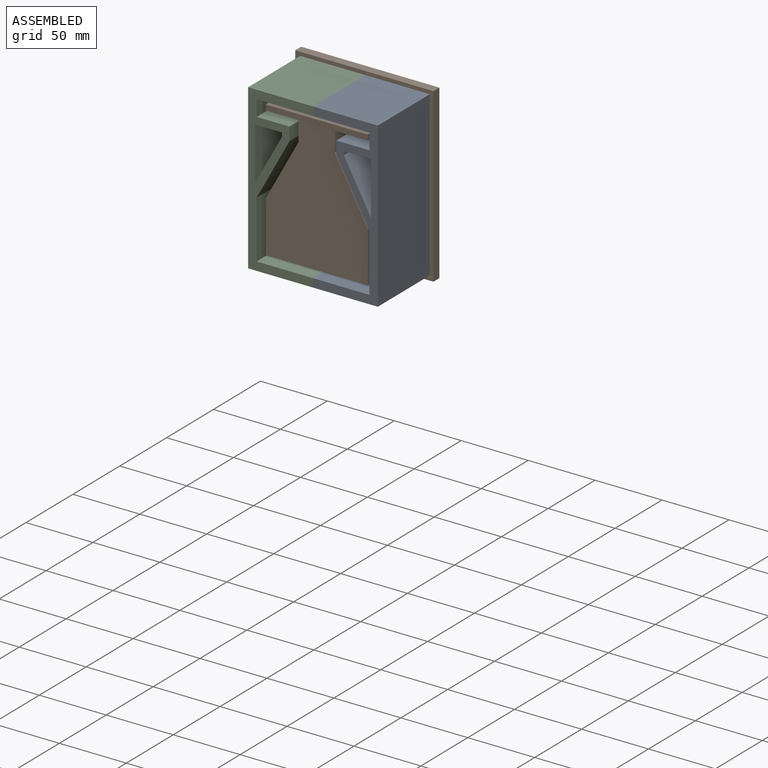
[diagram: assembled view]
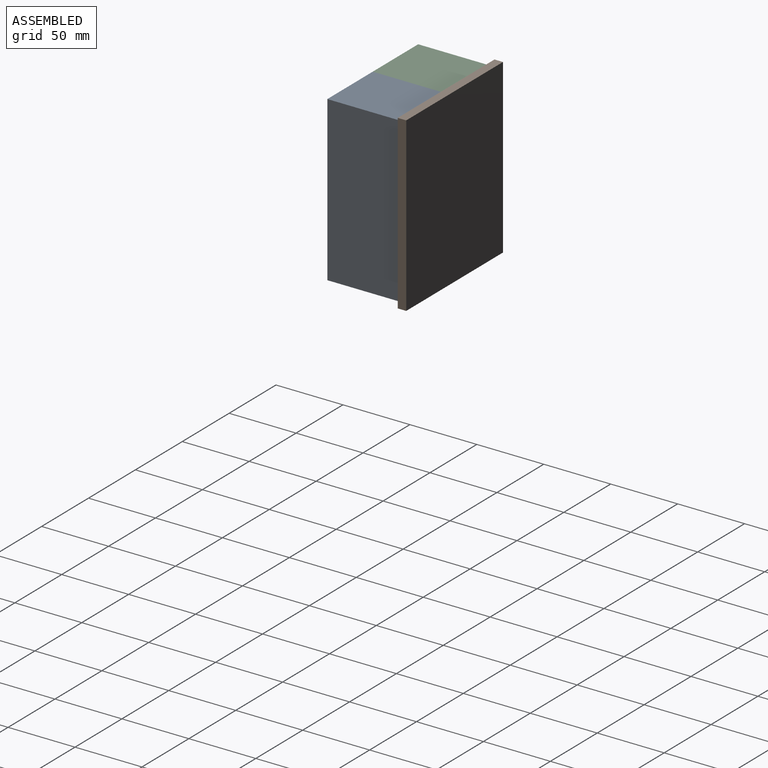
[diagram: assembled view, second angle]
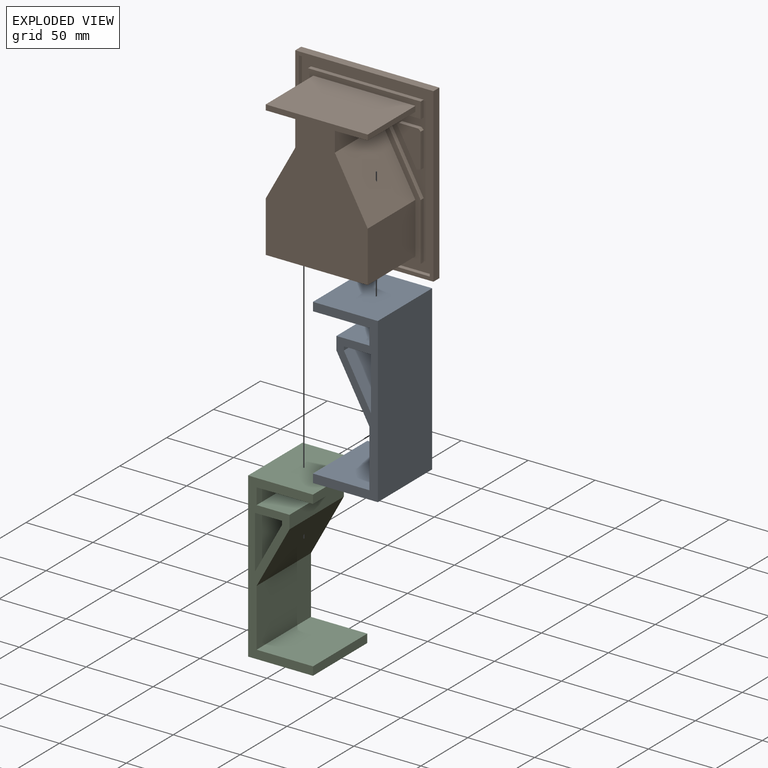
[diagram: exploded view]
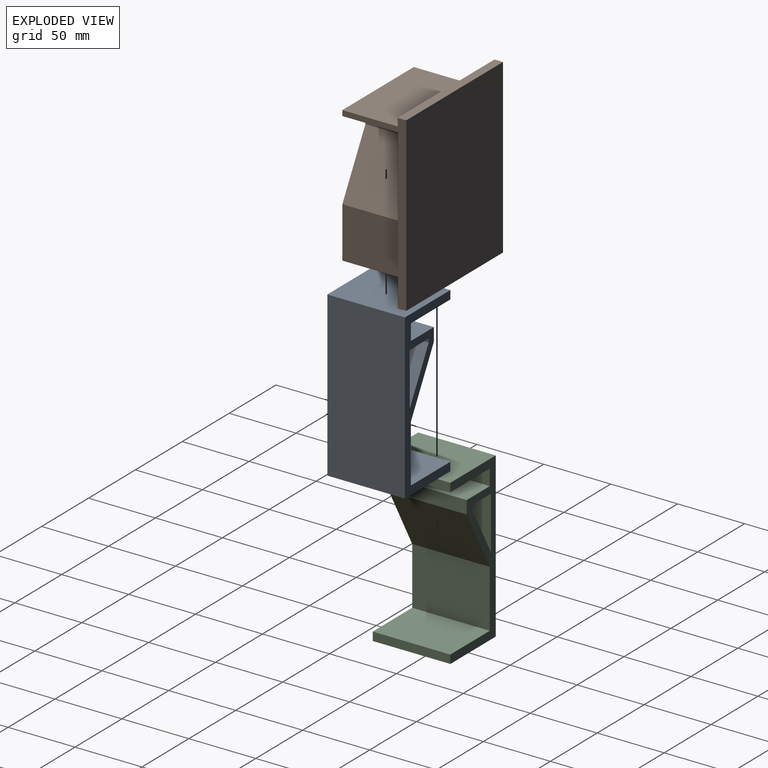
[diagram: exploded view, second angle]
ASSEMBLY  parts=3 mates=6
PART A: 18 faces, bbox 48.4x58x122.3 mm
  f0: plane 57.96x43.11mm, normal (1,0,0), area 2498.9mm2, adj f1,f11,f12,f13
  f1: plane 57.96x44.7mm, normal (0.88,0,-0.48), area 2956.9mm2, adj f0,f2,f12,f13
  f2: plane 57.96x9.8mm, normal (1,0,0), area 567.8mm2, adj f1,f3,f12,f13
  f3: plane 57.96x24.57mm, normal (0,0,1), area 1424.4mm2, adj f2,f4,f12,f13
  f4: plane 57.96x11.96mm, normal (1,0,0), area 693.4mm2, adj f3,f5,f12,f13
  f5: plane 57.96x42.09mm, normal (0,0,-1), area 2439.5mm2, adj f4,f6,f12,f13
  f6: plane 57.96x6.35mm, normal (1,0,0), area 368.1mm2, adj f5,f7,f12,f13
  f7: plane 57.96x48.44mm, normal (0,0,1), area 2807.6mm2, adj f6,f8,f12,f13
  f8: plane 122.28x57.96mm, normal (-1,0,0), area 7087.4mm2, adj f7,f9,f12,f13
  f9: plane 57.96x48.44mm, normal (0,0,-1), area 2807.6mm2, adj f8,f10,f12,f13
  f10: plane 57.96x6.35mm, normal (1,0,0), area 368.1mm2, adj f9,f11,f12,f13
  f11: plane 57.96x42.09mm, normal (0,0,1), area 2439.5mm2, adj f0,f10,f12,f13
  f12: plane 122.28x48.44mm, normal (0,-1,0), area 1672mm2, adj f0,f1,f2,f3,f4,f5,f6,f7
  f13: plane 122.28x48.44mm, normal (0,1,0), area 1672mm2, adj f0,f1,f2,f3,f4,f5,f6,f7
  f14: plane 57.96x20.23mm, normal (0,0,-1), area 1172.7mm2, adj f12,f13,f15,f17
  f15: plane 57.96x39.61mm, normal (1,0,0), area 2295.8mm2, adj f12,f13,f14,f16
  f16: plane 57.96x36.8mm, normal (-0.88,0,0.48), area 2434.3mm2, adj f12,f13,f15,f17
  f17: plane 57.96x2.81mm, normal (-1,0,0), area 162.6mm2, adj f12,f13,f14,f16
PART B: 51 faces, bbox 103.2x57.2x128.6 mm
  f0: plane 109.58x84.18mm, normal (0,-1,0), area 1728mm2, adj f1,f2,f3,f4,f5,f6,f7,f8
  f1: plane 50.8x3.99mm, normal (1,0,0), area 202.6mm2, adj f0,f2,f12,f13
  f2: plane 76.2x50.8mm, normal (0,0,1), area 3871mm2, adj f0,f1,f3,f13
  f3: plane 50.8x3.99mm, normal (-1,0,0), area 202.6mm2, adj f0,f2,f4,f13
  f4: plane 50.8x24.57mm, normal (0,0,-1), area 1248.4mm2, adj f0,f3,f5,f13
  f5: plane 50.8x14.81mm, normal (-1,0,0), area 752.3mm2, adj f0,f4,f6,f13
  f6: plane 50.8x44.7mm, normal (-0.88,0,0.48), area 2591.5mm2, adj f0,f5,f7,f13
  f7: plane 50.8x38.1mm, normal (-1,0,0), area 1935.5mm2, adj f0,f6,f8,f13
  f8: plane 76.2x50.8mm, normal (0,0,-1), area 3871mm2, adj f0,f7,f9,f13
  f9: plane 50.8x38.1mm, normal (1,0,0), area 1935.5mm2, adj f0,f8,f10,f13
  f10: plane 50.8x44.7mm, normal (0.88,0,0.48), area 2591.5mm2, adj f0,f9,f11,f13
  f11: plane 50.8x14.81mm, normal (1,0,0), area 752.3mm2, adj f0,f10,f12,f13
  f12: plane 50.8x24.57mm, normal (0,0,-1), area 1248.4mm2, adj f0,f1,f11,f13
  f13: plane 101.6x76.2mm, normal (0,-1,0), area 5915.5mm2, adj f1,f2,f3,f4,f5,f6,f7,f8
  f14: plane 97.74x3.18mm, normal (0,0,-1), area 310.3mm2, adj f15,f35,f36,f44
  f15: plane 123.14x3.18mm, normal (1,0,0), area 391mm2, adj f14,f16,f36,f44
  f16: plane 97.74x3.18mm, normal (0,0,1), area 310.3mm2, adj f15,f35,f36,f44
  f17: plane 25.66x3.18mm, normal (-1,0,0), area 81.5mm2, adj f36,f38,f49,f50
  f18: plane 14.53x3.18mm, normal (0,0,1), area 46.1mm2, adj f36,f38,f46,f49
  f19: plane 26.57x14.61mm, normal (-0.88,0,-0.48), area 96.3mm2, adj f36,f37,f45,f48
  f20: plane 14.53x3.18mm, normal (0,0,1), area 46.1mm2, adj f36,f37,f45,f47
  f21: plane 11.96x3.18mm, normal (-1,0,0), area 38mm2, adj f0,f22,f34,f36
  f22: plane 84.18x3.18mm, normal (0,0,1), area 267.3mm2, adj f0,f21,f23,f36
  f23: plane 11.96x3.18mm, normal (1,0,0), area 38mm2, adj f0,f22,f24,f36
  f24: plane 24.57x3.18mm, normal (0,0,-1), area 78mm2, adj f0,f23,f25,f36
  f25: plane 9.8x3.18mm, normal (1,0,0), area 31.1mm2, adj f0,f24,f26,f36
  f26: plane 44.7x24.57mm, normal (0.88,0,0.48), area 162mm2, adj f0,f25,f27,f36
  f27: plane 43.11x3.18mm, normal (1,0,0), area 136.9mm2, adj f0,f26,f28,f36
  f28: plane 84.18x3.18mm, normal (0,0,-1), area 267.3mm2, adj f0,f27,f29,f36
  f29: plane 43.11x3.18mm, normal (-1,0,0), area 136.9mm2, adj f0,f28,f30,f36
  f30: plane 44.7x24.57mm, normal (-0.88,0,0.48), area 162mm2, adj f0,f29,f31,f36
  f31: plane 9.8x3.18mm, normal (-1,0,0), area 31.1mm2, adj f0,f30,f34,f36
  f32: plane 26.57x14.61mm, normal (0.88,0,-0.48), area 96.3mm2, adj f36,f38,f46,f50
  f33: plane 25.66x3.18mm, normal (1,0,0), area 81.5mm2, adj f36,f37,f47,f48
  f34: plane 24.57x3.18mm, normal (0,0,-1), area 78mm2, adj f0,f21,f31,f36
  f35: plane 123.14x3.18mm, normal (-1,0,0), area 391mm2, adj f14,f16,f36,f44
  f36: plane 123.14x97.74mm, normal (0,-1,0), area 3795.5mm2, adj f14,f15,f16,f17,f18,f19,f20,f21
  f37: plane 28.08x17.67mm, normal (0,-1,0), area 298.3mm2, adj f19,f20,f33,f45,f47,f48
  f38: plane 28.08x17.67mm, normal (0,-1,0), area 298.3mm2, adj f17,f18,f32,f46,f49,f50
  f39: plane 128.63x103.23mm, normal (0,1,0), area 13277.5mm2, adj f40,f41,f42,f43
  f40: plane 128.63x6.35mm, normal (1,0,0), area 816.8mm2, adj f39,f41,f43,f44
  f41: plane 103.23x6.35mm, normal (0,0,-1), area 655.5mm2, adj f39,f40,f42,f44
  f42: plane 128.63x6.35mm, normal (-1,0,0), area 816.8mm2, adj f39,f41,f43,f44
  f43: plane 103.23x6.35mm, normal (0,0,1), area 655.5mm2, adj f39,f40,f42,f44
  f44: plane 128.63x103.23mm, normal (0,-1,0), area 1241.9mm2, adj f14,f15,f16,f35,f40,f41,f42,f43
  f45: plane 3.18x1.5mm, normal (-0.71,0,0.71), area 6.8mm2, adj f19,f20,f36,f37
  f46: plane 3.18x1.5mm, normal (0.71,0,0.71), area 6.8mm2, adj f18,f32,f36,f38
  f47: plane 3.18x1.63mm, normal (0.71,0,0.71), area 7.3mm2, adj f20,f33,f36,f37
  f48: plane 3.18x3.06mm, normal (0.25,0,-0.97), area 10mm2, adj f19,f33,f36,f37
  f49: plane 3.18x1.63mm, normal (-0.71,0,0.71), area 7.3mm2, adj f17,f18,f36,f38
  f50: plane 3.18x3.06mm, normal (-0.25,0,-0.97), area 10mm2, adj f17,f32,f36,f38
PART C: same geometry as A
PLACE A rot(axis=(0,0,1),180deg) t=(-25.67,-35.61,30.26)mm
PLACE B t=(-25.67,19.17,30.26)mm fixed
PLACE C t=(-25.67,22.35,30.26)mm
MATE planar C.f11 <-> B.f28  axis (0,0,1) through (-46.72,22.35,-11.83)mm
MATE planar B.f22 <-> A.f5  axis (0,0,1) through (-25.67,20.76,97.75)mm
MATE planar B.f36 <-> A.f12  axis (0,-1,0) through (-25.67,22.35,49.04)mm
MATE planar C.f0 <-> B.f29  axis (1,0,0) through (-67.76,-6.63,9.73)mm
MATE planar B.f36 <-> C.f13  axis (0,-1,0) through (-25.67,22.35,49.04)mm
MATE planar A.f0 <-> B.f27  axis (-1,0,0) through (16.42,-6.63,9.73)mm
